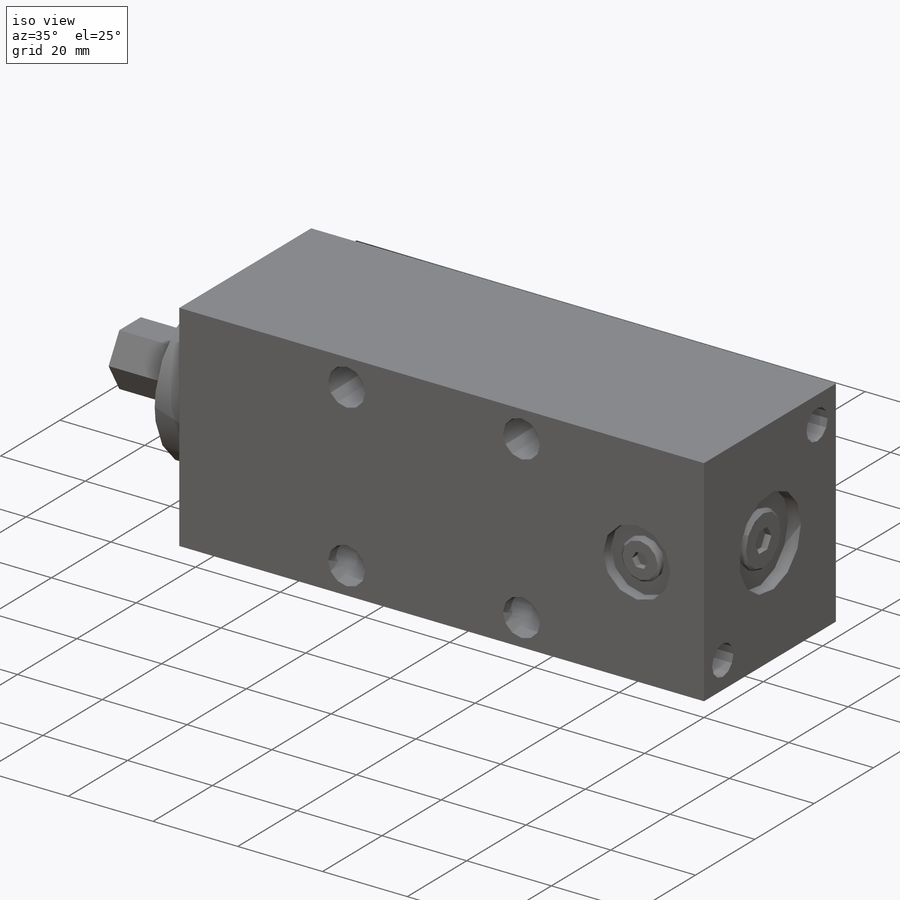
[diagram: iso view]
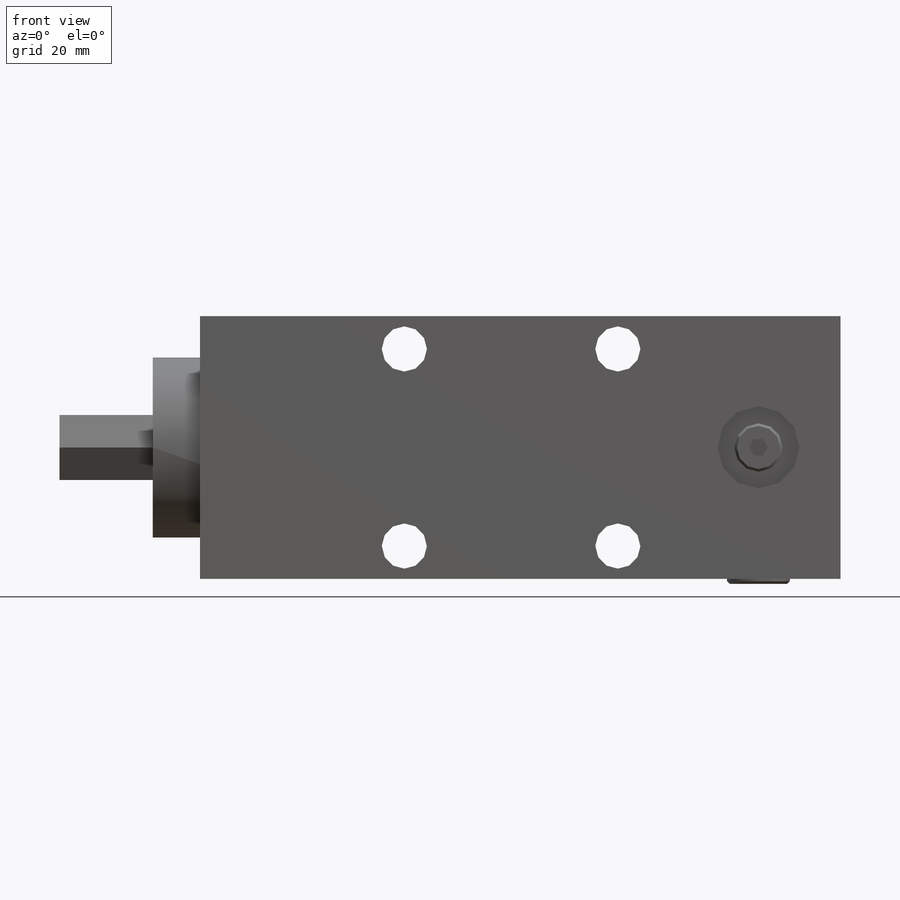
[diagram: front view]
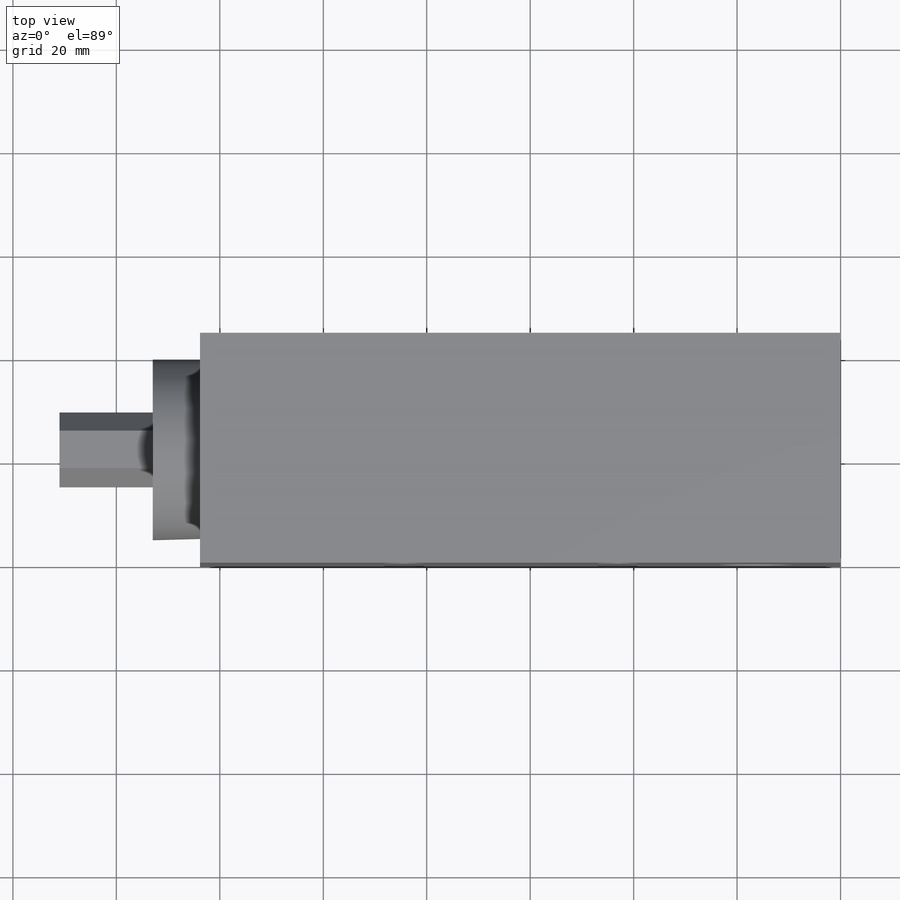
[diagram: top view]
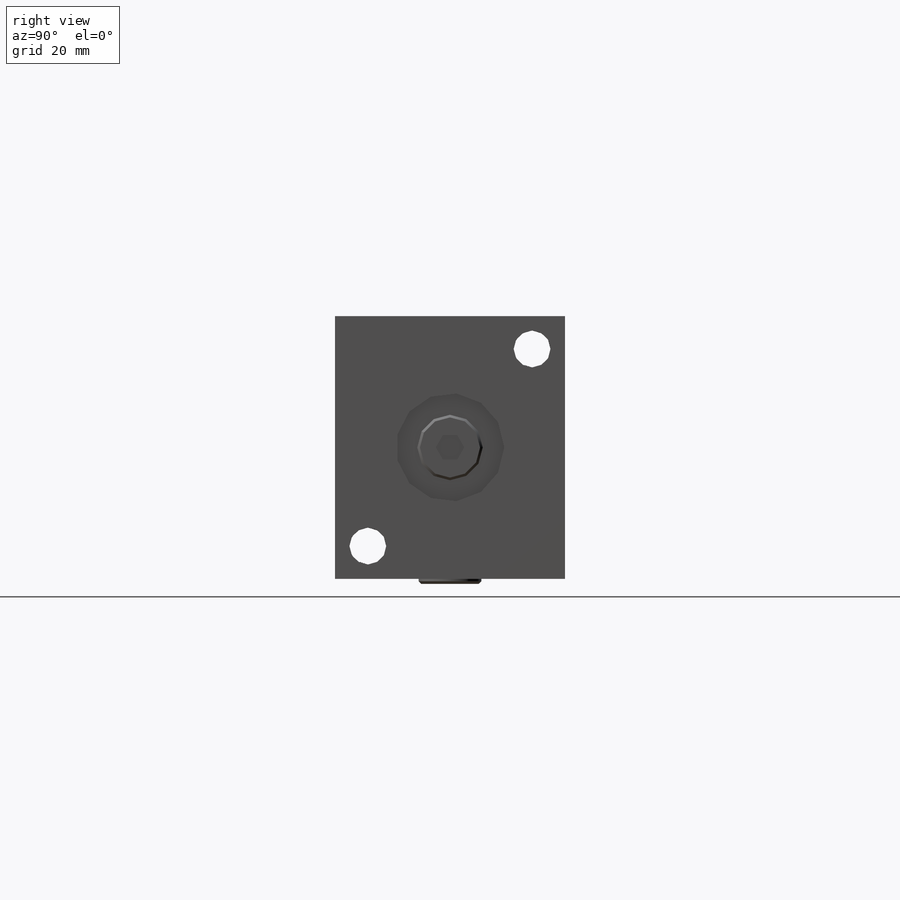
[diagram: right view]
SOLIDWORKS PART (.sldprt)
format: sldprt  version: not decoded by parser v0  size: 421,376 bytes
history: native  units: mm
features: sketch x13, cut_extrude x7, extrude x6, chamfer x3, material x1 (+11 scaffold rows collapsed)
feature tree (41):
  scaffold x11  (default folders/planes/origin — collapsed)
  material  "Alloy Steel"
  sketch  "Sketch1"  dims[D1=123.825mm D2=44.45mm]
  extrude  "Boss-Extrude1"  Depth=50.8mm
  sketch  "Sketch2"  dims[D3=34.925mm D1=25.4mm D2=22.225mm]
  extrude  "Boss-Extrude2"  Depth=9.144mm
  sketch  "Sketch3"  dims[c1.D1=25.4mm c1.D2=22.225mm c1.D3=~8.08223mm c2.D3=~4.755409deg c2.D1=25.4mm c2.D2=22.225mm c3.D3=12.5476mm c3.D4=~7.24436mm c4.D4=30.0deg]
  extrude  "Boss-Extrude3"  Depth=18.034mm
  sketch  "Sketch4"  dims[D3=8.7376mm D1=39.497mm D2=41.275mm D4=6.35mm D5=38.1mm]
  cut_extrude  "Cut-Extrude1"  [1 undecoded]
  sketch  "Sketch5"  dims[D5=7.1374mm D1=38.1mm D2=6.35mm D3=31.75mm D4=6.35mm]
  cut_extrude  "Cut-Extrude2"  [1 undecoded]
  sketch  "Sketch6"  dims[D1=20.955mm D2=107.95mm D3=22.225mm]
  cut_extrude  "Cut-Extrude3"  Depth=0.508mm
  sketch  "Sketch7"  dims[c1.D3=20.955mm c1.D1=25.4mm c1.D2=~30.889829mm c2.D2=90.0deg c3.D2=22.225mm]
  cut_extrude  "Cut-Extrude4"  Depth=3.048mm
  sketch  "Sketch8"  dims[D1=15.875mm D2=107.95mm D3=25.4mm]
  cut_extrude  "Cut-Extrude5"  Depth=2.6416mm
  sketch  "Sketch9"  dims[D1=12.1412mm]
  extrude  "Boss-Extrude4"  Depth=1.4732mm
  sketch  "Sketch10"  dims[c1.D1=4.7625mm c1.D2=~2.749631mm c2.D2=30.0deg]
  cut_extrude  "Cut-Extrude6"  Depth=1.4732mm
  sketch  "Sketch11"  dims[c1.D3=12.6492mm c1.D1=22.225mm c1.D2=25.4mm c1.D4=~3.481957mm c2.D4=30.0deg c2.D5=4.7625mm]
  extrude  "Boss-Extrude5"  Depth=1.4732mm
  sketch  "Sketch12"  dims[c1.D1=9.3472mm c1.D2=~1.467399mm c2.D2=60.0deg c2.D3=3.175mm]
  extrude  "Boss-Extrude6"  Depth=1.5748mm
  chamfer  "Chamfer1"  Distance=0.508mm Angle=45deg
  chamfer  "Chamfer2"  Distance=0.508mm Angle=45deg
  chamfer  "Chamfer3"  Distance=0.508mm Angle=45deg
  sketch  "Sketch13"  dims[D3=5.3086mm D1=22.225mm D2=25.4mm]
  cut_extrude  "Cut-Extrude7"  Depth=12.7mm
decode coverage: 27 of 29 modeling features carry decoded parameters
note: ~ marks probable driven/reference dimensions
note: 2 parameter values undecoded
note: suppression state not decoded; provenance and decode notes live in map.json
